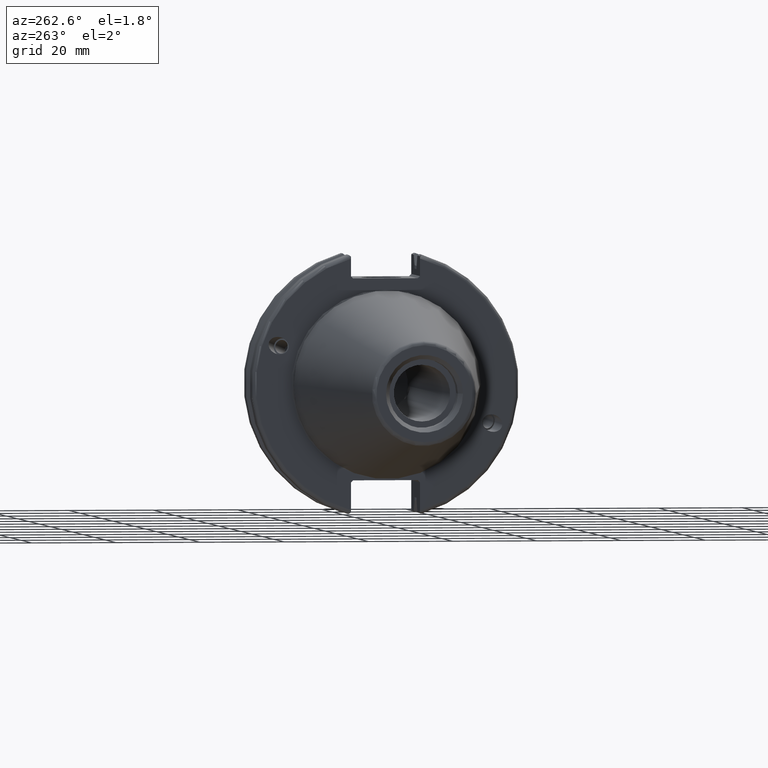
[diagram: clean part render]
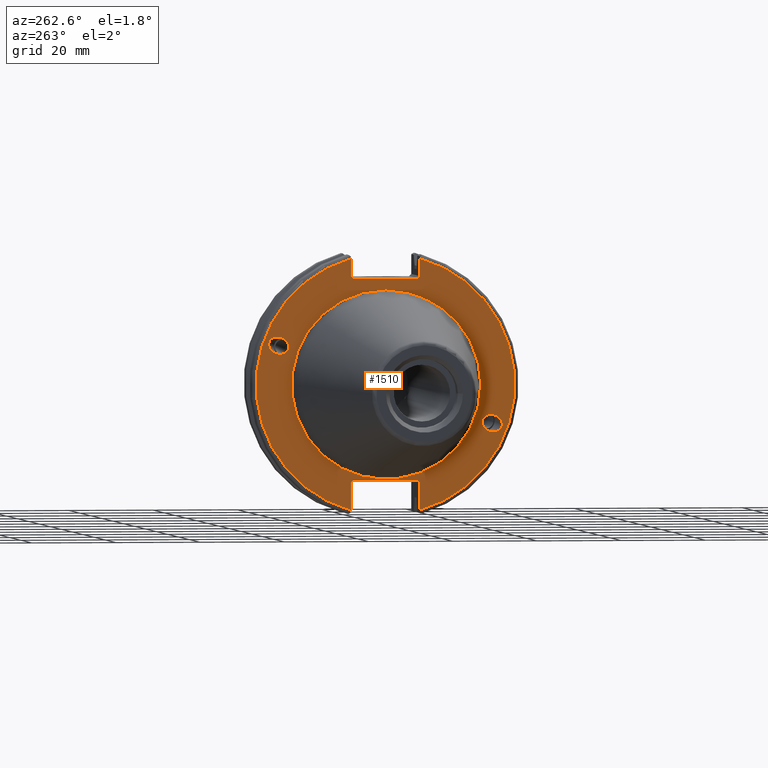
[diagram: same view with one face highlighted and labeled with its STEP entity id]
A machine part, auxiliary view. The second image highlights one B-rep face of the part: STEP entity #1510.
In plain terms, the highlighted planar face has unit normal (-1, 0, 0).
Its self-contained STEP definition (entity closure, byte-faithful):
#39=ELLIPSE('',#1637,2.44154917752292,2.00000000000001);
#48=ELLIPSE('',#1680,2.44154917752292,2.00000000000001);
#152=LINE('',#2678,#244);
#153=LINE('',#2680,#245);
#154=LINE('',#2682,#246);
#155=LINE('',#2684,#247);
#156=LINE('',#2686,#248);
#157=LINE('',#2690,#249);
#158=LINE('',#2692,#250);
#159=LINE('',#2694,#251);
#160=LINE('',#2696,#252);
#161=LINE('',#2697,#253);
#244=VECTOR('',#2023,10.);
#245=VECTOR('',#2024,10.);
#246=VECTOR('',#2025,10.);
#247=VECTOR('',#2026,10.);
#248=VECTOR('',#2027,10.);
#249=VECTOR('',#2030,10.);
#250=VECTOR('',#2031,10.);
#251=VECTOR('',#2032,10.);
#252=VECTOR('',#2033,10.);
#253=VECTOR('',#2034,10.);
#313=FACE_BOUND('',#494,.T.);
#314=FACE_BOUND('',#495,.T.);
#315=FACE_BOUND('',#496,.T.);
#331=PLANE('',#1686);
#397=FACE_OUTER_BOUND('',#493,.T.);
#493=EDGE_LOOP('',(#1221,#1222,#1223,#1224,#1225,#1226,#1227,#1228,#1229,
#1230,#1231,#1232));
#494=EDGE_LOOP('',(#1233));
#495=EDGE_LOOP('',(#1234));
#496=EDGE_LOOP('',(#1235));
#591=CIRCLE('',#1684,22.3);
#593=CIRCLE('',#1687,30.75);
#594=CIRCLE('',#1688,30.75);
#673=VERTEX_POINT('',#2479);
#713=VERTEX_POINT('',#2662);
#716=VERTEX_POINT('',#2669);
#717=VERTEX_POINT('',#2674);
#718=VERTEX_POINT('',#2675);
#719=VERTEX_POINT('',#2677);
#720=VERTEX_POINT('',#2679);
#721=VERTEX_POINT('',#2681);
#722=VERTEX_POINT('',#2683);
#723=VERTEX_POINT('',#2685);
#724=VERTEX_POINT('',#2687);
#725=VERTEX_POINT('',#2689);
#726=VERTEX_POINT('',#2691);
#727=VERTEX_POINT('',#2693);
#728=VERTEX_POINT('',#2695);
#843=EDGE_CURVE('',#673,#673,#39,.T.);
#899=EDGE_CURVE('',#713,#713,#48,.T.);
#902=EDGE_CURVE('',#716,#716,#591,.T.);
#904=EDGE_CURVE('',#717,#718,#593,.T.);
#905=EDGE_CURVE('',#717,#719,#152,.T.);
#906=EDGE_CURVE('',#720,#719,#153,.T.);
#907=EDGE_CURVE('',#720,#721,#154,.T.);
#908=EDGE_CURVE('',#722,#721,#155,.T.);
#909=EDGE_CURVE('',#722,#723,#156,.T.);
#910=EDGE_CURVE('',#724,#723,#594,.T.);
#911=EDGE_CURVE('',#724,#725,#157,.T.);
#912=EDGE_CURVE('',#726,#725,#158,.T.);
#913=EDGE_CURVE('',#726,#727,#159,.T.);
#914=EDGE_CURVE('',#728,#727,#160,.T.);
#915=EDGE_CURVE('',#728,#718,#161,.T.);
#1221=ORIENTED_EDGE('',*,*,#904,.F.);
#1222=ORIENTED_EDGE('',*,*,#905,.T.);
#1223=ORIENTED_EDGE('',*,*,#906,.F.);
#1224=ORIENTED_EDGE('',*,*,#907,.T.);
#1225=ORIENTED_EDGE('',*,*,#908,.F.);
#1226=ORIENTED_EDGE('',*,*,#909,.T.);
#1227=ORIENTED_EDGE('',*,*,#910,.F.);
#1228=ORIENTED_EDGE('',*,*,#911,.T.);
#1229=ORIENTED_EDGE('',*,*,#912,.F.);
#1230=ORIENTED_EDGE('',*,*,#913,.T.);
#1231=ORIENTED_EDGE('',*,*,#914,.F.);
#1232=ORIENTED_EDGE('',*,*,#915,.T.);
#1233=ORIENTED_EDGE('',*,*,#843,.T.);
#1234=ORIENTED_EDGE('',*,*,#899,.T.);
#1235=ORIENTED_EDGE('',*,*,#902,.F.);
#1510=ADVANCED_FACE('',(#397,#313,#314,#315),#331,.T.);
#1637=AXIS2_PLACEMENT_3D('',#2481,#1904,#1905);
#1680=AXIS2_PLACEMENT_3D('',#2664,#2007,#2008);
#1684=AXIS2_PLACEMENT_3D('',#2671,#2015,#2016);
#1686=AXIS2_PLACEMENT_3D('',#2673,#2019,#2020);
#1687=AXIS2_PLACEMENT_3D('',#2676,#2021,#2022);
#1688=AXIS2_PLACEMENT_3D('',#2688,#2028,#2029);
#1904=DIRECTION('center_axis',(1.,0.,0.));
#1905=DIRECTION('ref_axis',(5.68400912649E-17,-0.939692620785909,-0.342020143325667));
#2007=DIRECTION('center_axis',(1.,0.,0.));
#2008=DIRECTION('ref_axis',(5.68400912649E-17,0.939692620785909,0.342020143325667));
#2015=DIRECTION('center_axis',(-1.,0.,0.));
#2016=DIRECTION('ref_axis',(0.,-1.,1.83697019872103E-16));
#2019=DIRECTION('center_axis',(-1.,0.,0.));
#2020=DIRECTION('ref_axis',(0.,0.,1.));
#2021=DIRECTION('center_axis',(1.,0.,0.));
#2022=DIRECTION('ref_axis',(0.,-1.,1.60812264967664E-16));
#2023=DIRECTION('',(0.,0.,-1.));
#2024=DIRECTION('',(0.,-0.70710678118655,0.707106781186545));
#2025=DIRECTION('',(0.,1.,0.));
#2026=DIRECTION('',(0.,-0.707106781186549,-0.707106781186546));
#2027=DIRECTION('',(0.,0.,1.));
#2028=DIRECTION('center_axis',(1.,0.,0.));
#2029=DIRECTION('ref_axis',(0.,1.,1.60812264967664E-16));
#2030=DIRECTION('',(0.,0.,1.));
#2031=DIRECTION('',(0.,0.707106781186549,-0.707106781186546));
#2032=DIRECTION('',(0.,-1.,0.));
#2033=DIRECTION('',(0.,0.707106781186549,0.707106781186546));
#2034=DIRECTION('',(0.,0.,-1.));
#2479=CARTESIAN_POINT('',(3.175,-23.0773950158153,-8.39948487016));
#2481=CARTESIAN_POINT('Origin',(3.175,-25.3717007612195,-9.23454386979305));
#2662=CARTESIAN_POINT('',(3.175,23.0773950158153,8.39948487016));
#2664=CARTESIAN_POINT('Origin',(3.175,25.3717007612195,9.23454386979306));
#2669=CARTESIAN_POINT('',(3.175,-2.7309623620986E-15,22.3));
#2671=CARTESIAN_POINT('Origin',(3.175,0.,0.));
#2673=CARTESIAN_POINT('Origin',(3.175,31.75,0.));
#2674=CARTESIAN_POINT('',(3.175,-8.18999999999999,29.6392712461019));
#2675=CARTESIAN_POINT('',(3.175,-8.19,-29.6392712461019));
#2676=CARTESIAN_POINT('Origin',(3.175,0.,0.));
#2677=CARTESIAN_POINT('',(3.175,-8.18999999999999,25.5));
#2678=CARTESIAN_POINT('',(3.175,-8.18999999999999,12.5));
#2679=CARTESIAN_POINT('',(3.175,-7.68999999999999,25.));
#2680=CARTESIAN_POINT('',(3.175,8.29500000000007,9.01500000000004));
#2681=CARTESIAN_POINT('',(3.175,7.69,25.));
#2682=CARTESIAN_POINT('',(3.175,15.875,25.));
#2683=CARTESIAN_POINT('',(3.175,8.19,25.5));
#2684=CARTESIAN_POINT('',(3.175,7.58000000000002,24.89));
#2685=CARTESIAN_POINT('',(3.175,8.19,29.6392712461019));
#2686=CARTESIAN_POINT('',(3.175,8.19,12.5));
#2687=CARTESIAN_POINT('',(3.175,8.18999999999999,-29.6392712461019));
#2688=CARTESIAN_POINT('Origin',(3.175,0.,0.));
#2689=CARTESIAN_POINT('',(3.175,8.18999999999999,-23.1));
#2690=CARTESIAN_POINT('',(3.175,8.18999999999999,-11.3));
#2691=CARTESIAN_POINT('',(3.175,7.69,-22.6));
#2692=CARTESIAN_POINT('',(3.175,8.18000000000002,-23.09));
#2693=CARTESIAN_POINT('',(3.175,-7.69,-22.6));
#2694=CARTESIAN_POINT('',(3.175,15.875,-22.6));
#2695=CARTESIAN_POINT('',(3.175,-8.19,-23.1));
#2696=CARTESIAN_POINT('',(3.175,7.69500000000004,-7.21500000000002));
#2697=CARTESIAN_POINT('',(3.175,-8.19,-11.3));